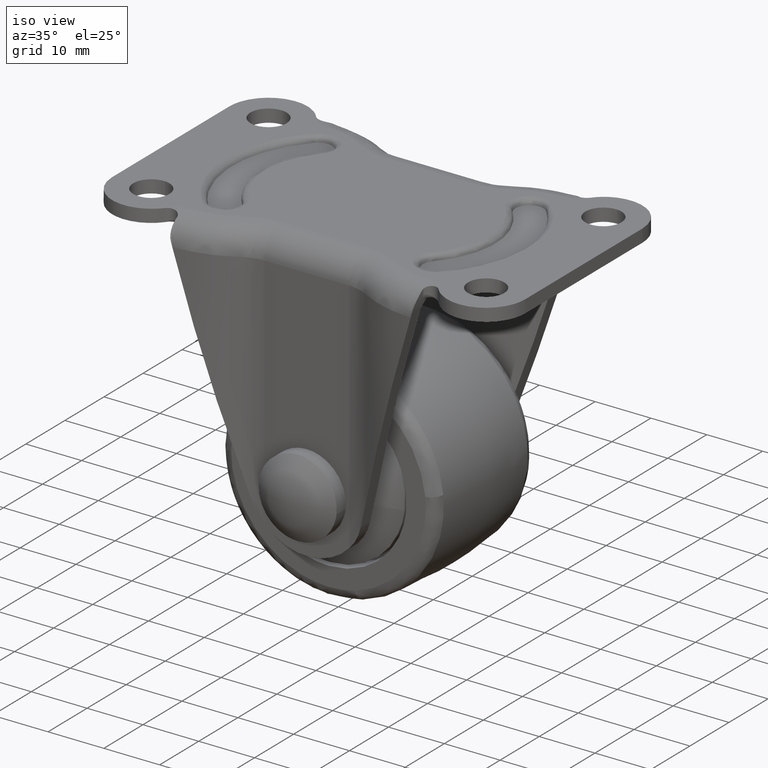
[diagram: clean part render]
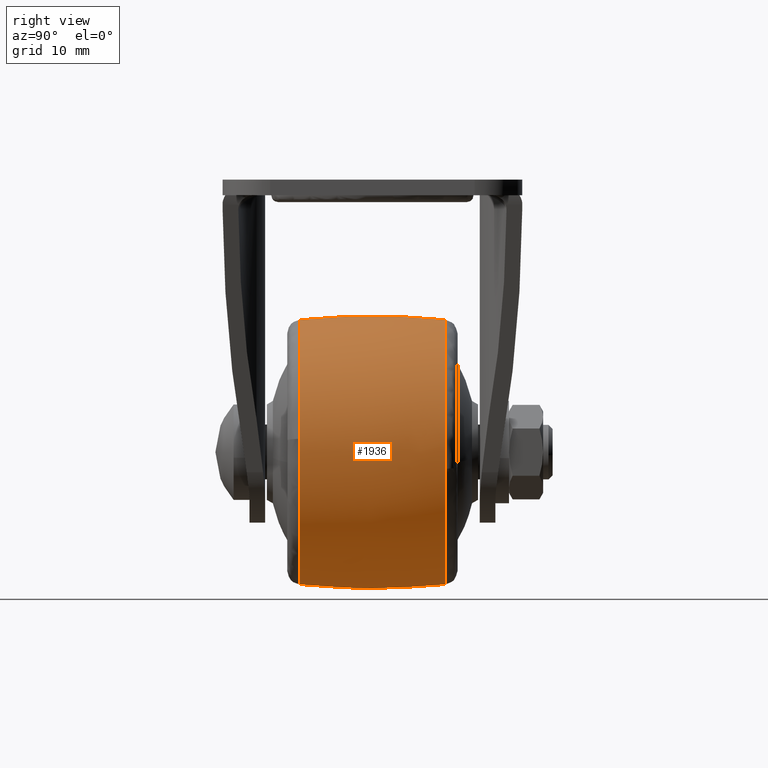
[diagram: tour spotlight — one face highlighted and labeled with its STEP entity id]
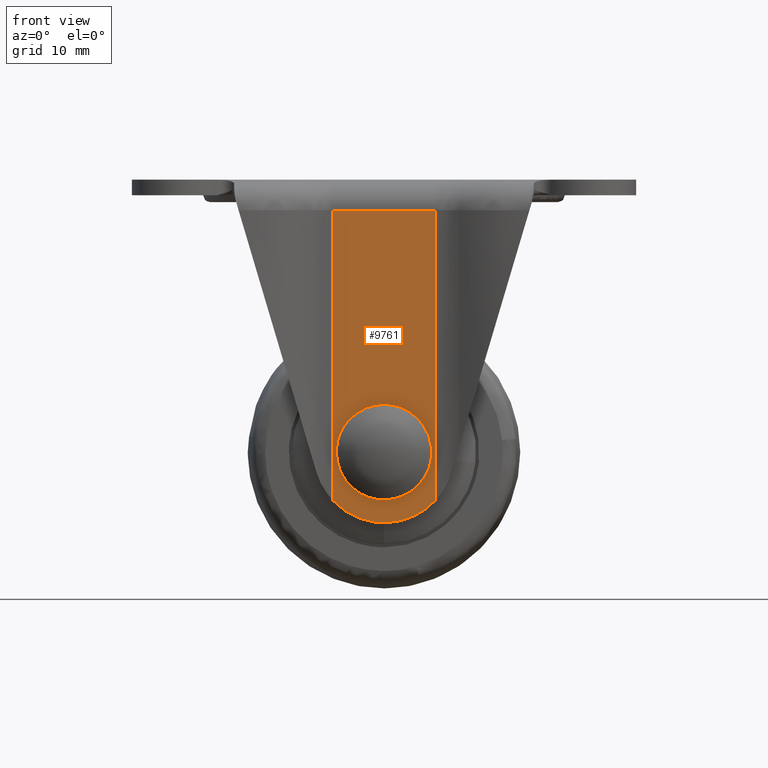
[diagram: tour spotlight — one face highlighted and labeled with its STEP entity id]
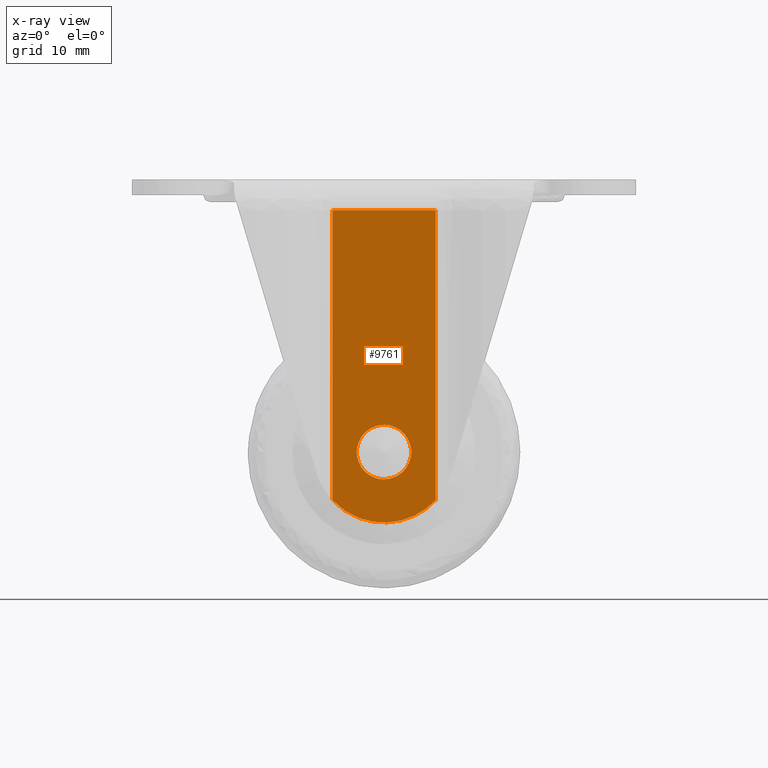
[diagram: x-ray of the same camera — body ghosted, this tour face saturated]
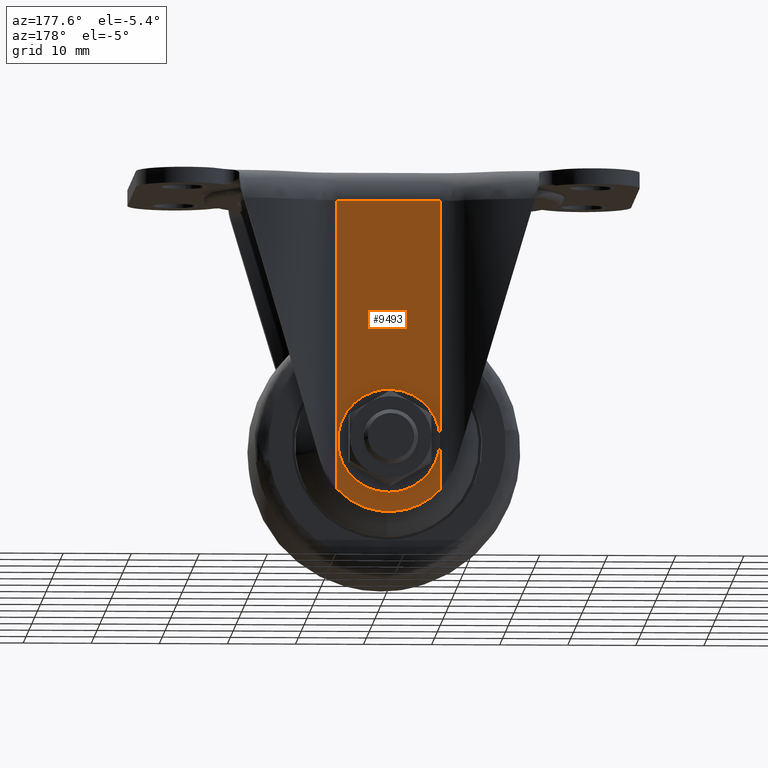
[diagram: tour spotlight — one face highlighted and labeled with its STEP entity id]
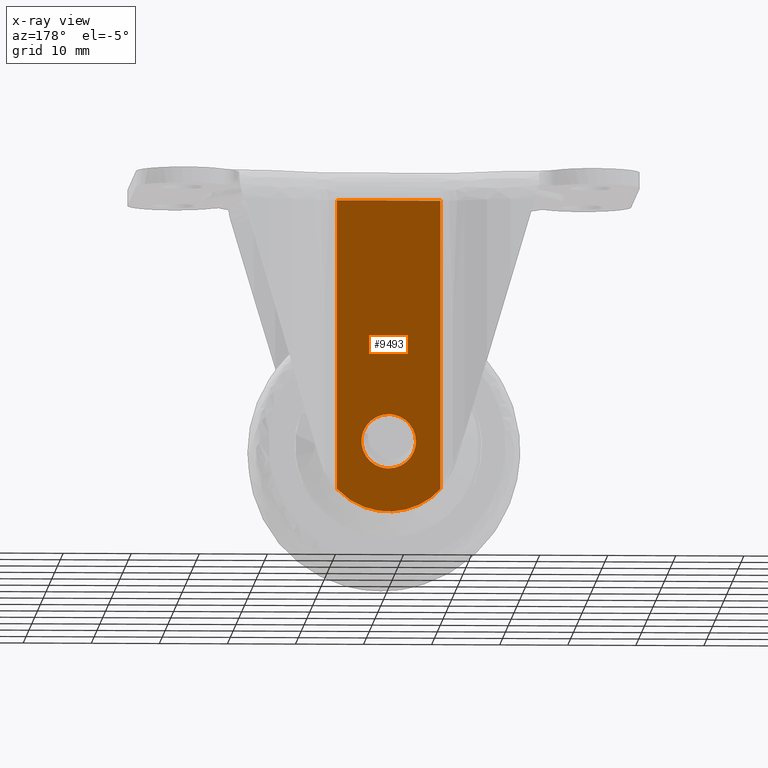
[diagram: x-ray of the same camera — body ghosted, this tour face saturated]
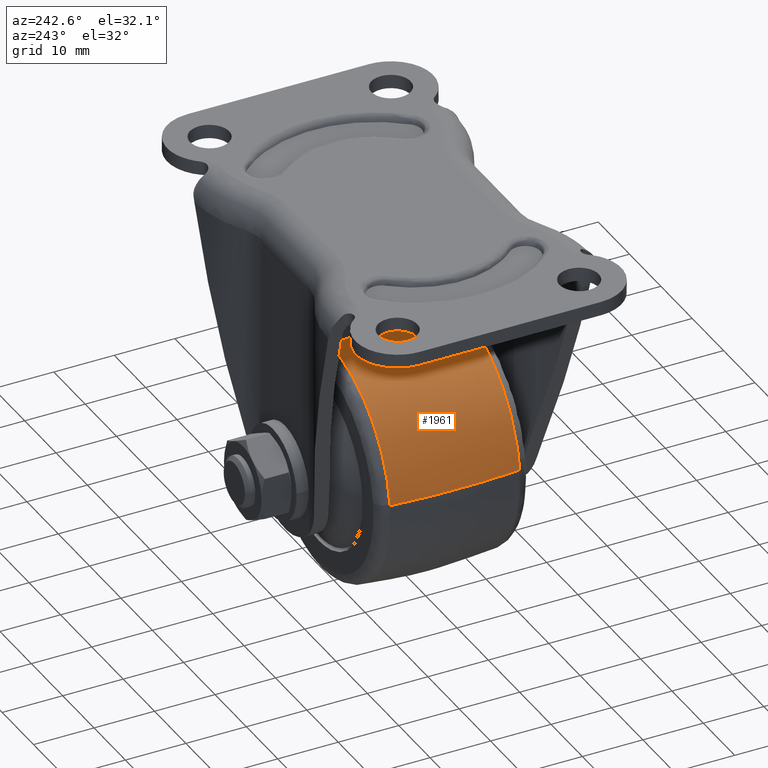
[diagram: tour spotlight — one face highlighted and labeled with its STEP entity id]
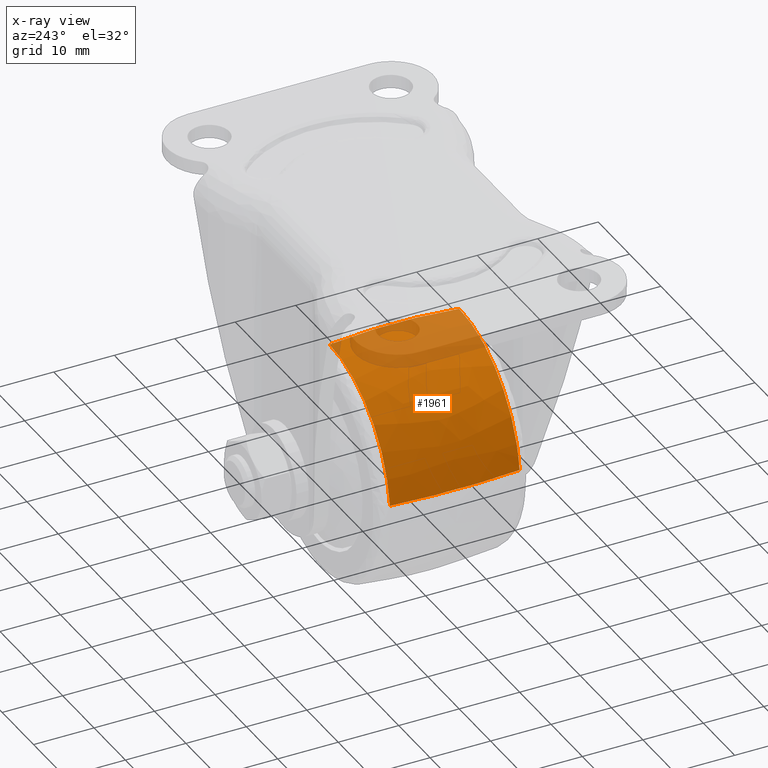
[diagram: x-ray of the same camera — body ghosted, this tour face saturated]
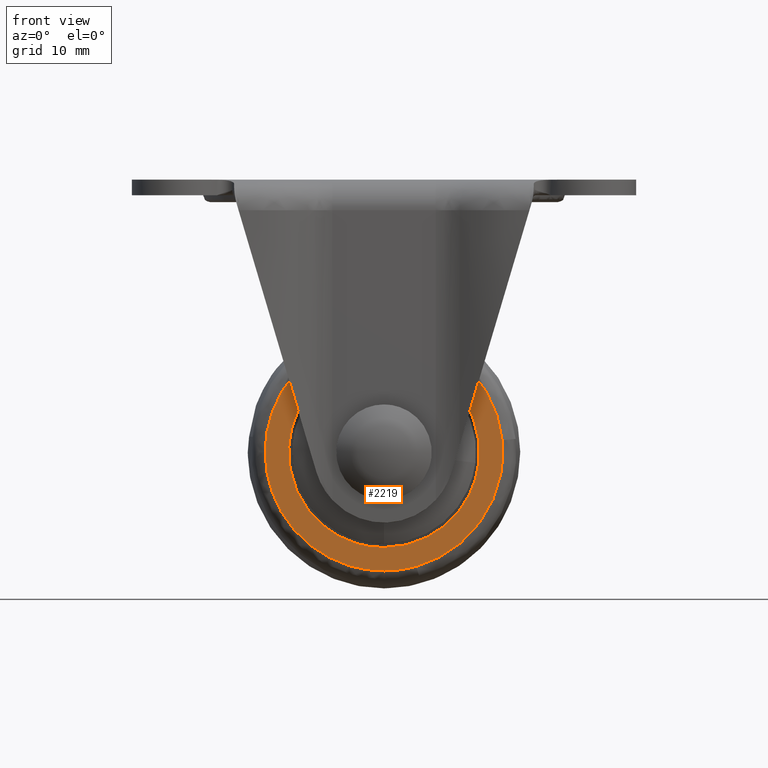
[diagram: tour spotlight — one face highlighted and labeled with its STEP entity id]
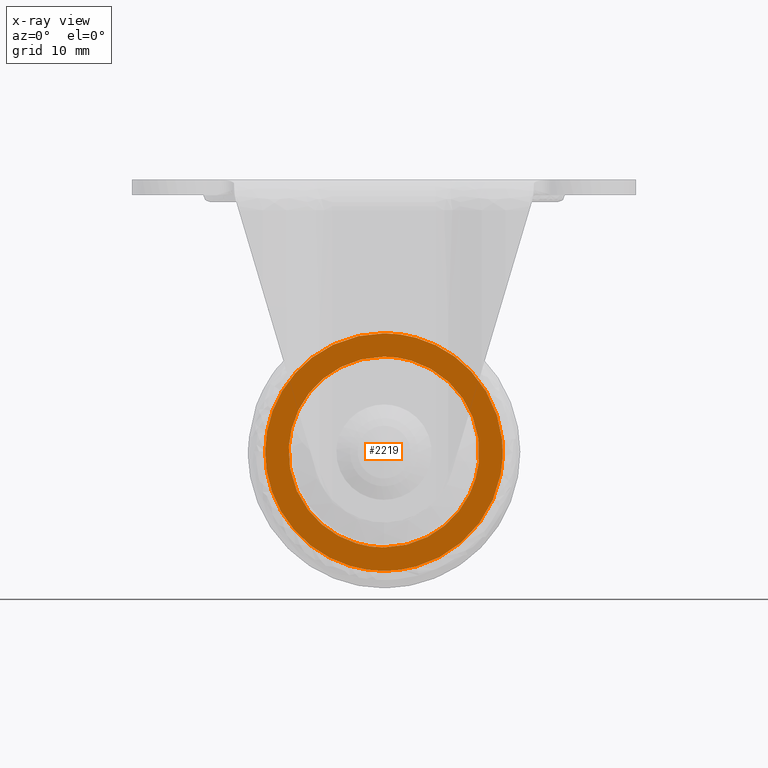
[diagram: x-ray of the same camera — body ghosted, this tour face saturated]
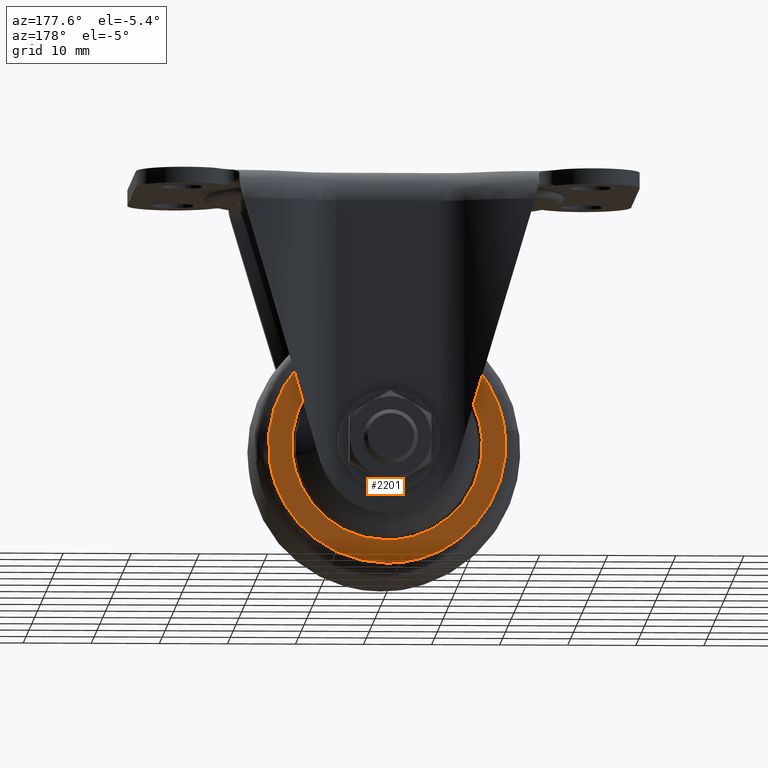
[diagram: tour spotlight — one face highlighted and labeled with its STEP entity id]
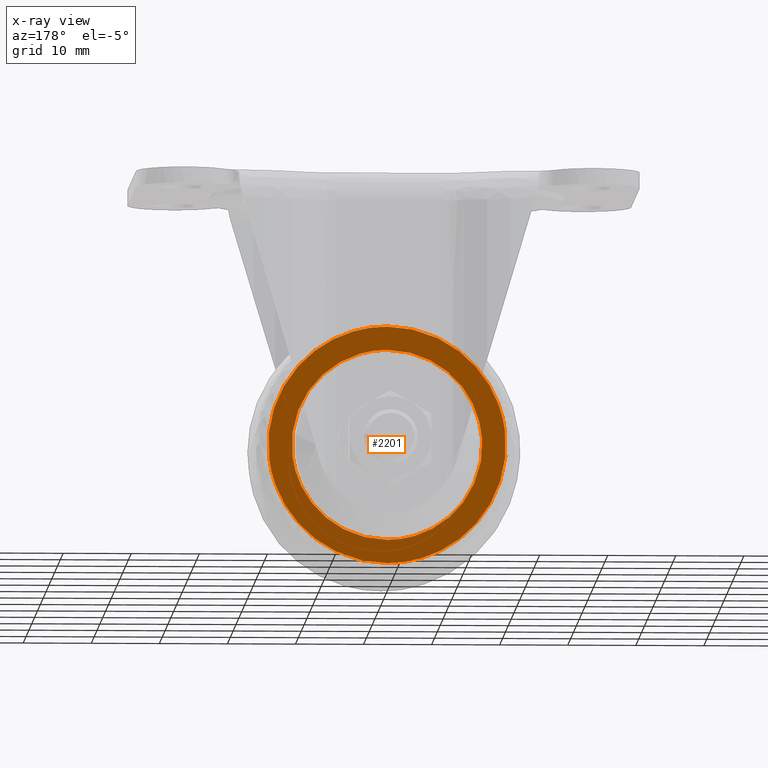
[diagram: x-ray of the same camera — body ghosted, this tour face saturated]
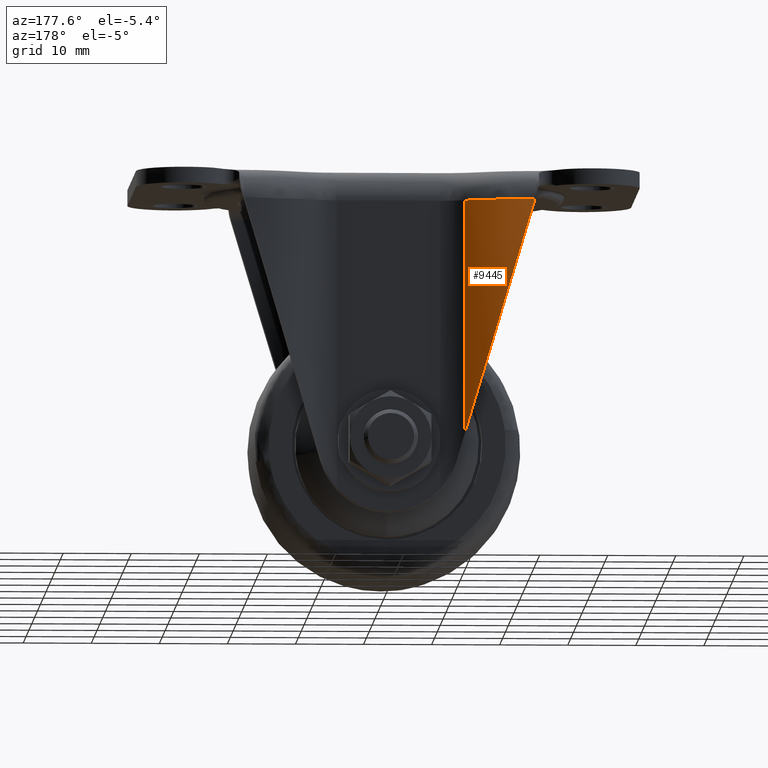
[diagram: tour spotlight — one face highlighted and labeled with its STEP entity id]
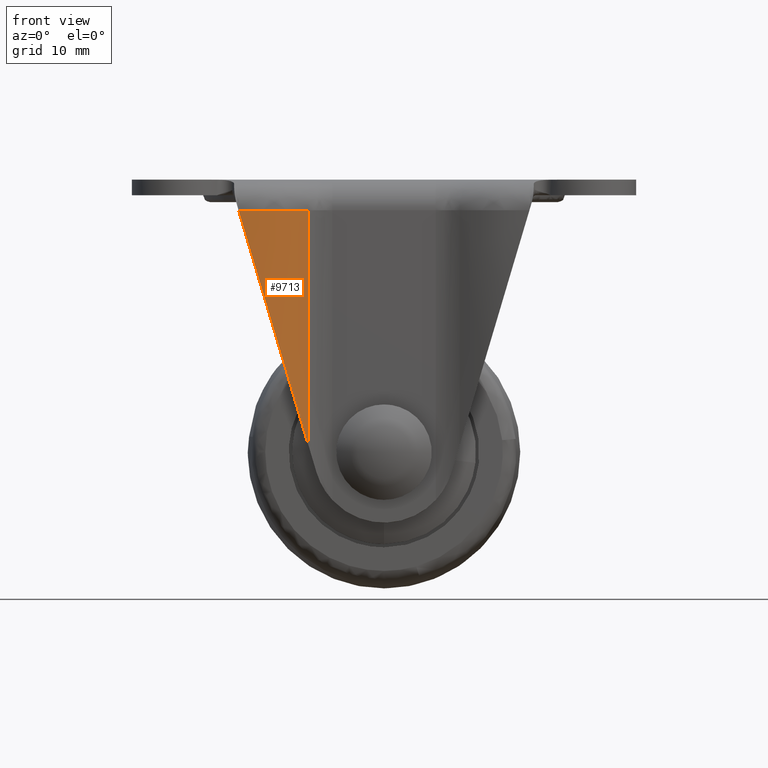
[diagram: tour spotlight — one face highlighted and labeled with its STEP entity id]
A machine part: a face-by-face anatomy tour. The part has 183 B-rep faces; the first image is the clean iso view, then the 8 largest visible faces are spotlighted one at a time (largest first), each with its STEP entity span.

Face 1 — right view, entity #1936. In plain terms, the highlighted face is a freeform B-spline surface patch.
Definition (entity closure, byte-faithful):
#1486=CARTESIAN_POINT('',(0.0,10.714286299961399,-20.575636441149630));
#1487=VERTEX_POINT('',#1486);
#1501=CARTESIAN_POINT('',(19.271196713010909,10.714285714422591,-42.434518302696873));
#1502=VERTEX_POINT('',#1501);
#1503=CARTESIAN_POINT('',(19.271196713010905,10.714285714422589,-42.434518302696880));
#1504=CARTESIAN_POINT('',(19.424363621964595,10.714285714285703,-41.222077373919213));
#1505=CARTESIAN_POINT('',(19.424363621964599,10.714285714285699,-40.0));
#1506=CARTESIAN_POINT('',(19.424363621964606,10.714285714285701,-20.575636378035405));
#1507=CARTESIAN_POINT('',(0.0,10.714286299961399,-20.575636441149630));
#1515=(BOUNDED_CURVE()B_SPLINE_CURVE(2,(#1503,#1504,#1505,#1506,#1507),.UNSPECIFIED.,.F.,.U.)B_SPLINE_CURVE_WITH_KNOTS((3,2,3),(0.228321256481037,0.250000000000000,0.500000000000000),.UNSPECIFIED.)CURVE()GEOMETRIC_REPRESENTATION_ITEM()RATIONAL_B_SPLINE_CURVE((0.953608357590948,0.974601772123599,1.0,0.707106781186548,1.0))REPRESENTATION_ITEM(''));
#1516=EDGE_CURVE('',#1502,#1487,#1515,.T.);
#1573=CARTESIAN_POINT('',(0.0,10.714285714285699,-59.424363621964602));
#1574=VERTEX_POINT('',#1573);
#1575=CARTESIAN_POINT('',(0.0,10.714285714285699,-59.424363621964602));
#1576=CARTESIAN_POINT('',(17.124880113895124,10.714285714285701,-59.424363621964616));
#1577=CARTESIAN_POINT('',(19.271196713010912,10.714285714422587,-42.434518302696873));
#1585=(BOUNDED_CURVE()B_SPLINE_CURVE(2,(#1575,#1576,#1577),.UNSPECIFIED.,.F.,.U.)B_SPLINE_CURVE_WITH_KNOTS((3,3),(0.0,0.228321256481038),.UNSPECIFIED.)CURVE()GEOMETRIC_REPRESENTATION_ITEM()RATIONAL_B_SPLINE_CURVE((1.0,0.732505009062948,0.953608357590948))REPRESENTATION_ITEM(''));
#1586=EDGE_CURVE('',#1574,#1502,#1585,.T.);
#1588=CARTESIAN_POINT('',(-19.294447095017929,10.714288828713890,-37.757189179322722));
#1589=VERTEX_POINT('',#1588);
#1590=CARTESIAN_POINT('',(-19.294447095017933,10.714288828713890,-37.757189179322722));
#1591=CARTESIAN_POINT('',(-19.424363297184993,10.714288748389205,-38.874831870471347));
#1592=CARTESIAN_POINT('',(-19.424363306840551,10.714288658186630,-40.000000036630418));
#1593=CARTESIAN_POINT('',(-19.424363473529457,10.714287100972530,-59.424363639218889));
#1594=CARTESIAN_POINT('',(0.0,10.714285714285699,-59.424363621964602));
#1602=(BOUNDED_CURVE()B_SPLINE_CURVE(2,(#1590,#1591,#1592,#1593,#1594),.UNSPECIFIED.,.F.,.U.)B_SPLINE_CURVE_WITH_KNOTS((3,2,3),(0.730000072909764,0.750000000000000,1.0),.UNSPECIFIED.)CURVE()GEOMETRIC_REPRESENTATION_ITEM()RATIONAL_B_SPLINE_CURVE((0.956886261694801,0.976568627914026,1.0,0.707106781186548,1.0))REPRESENTATION_ITEM(''));
#1603=EDGE_CURVE('',#1589,#1574,#1602,.T.);
#1654=CARTESIAN_POINT('',(5.292705178533552,-10.714285764673340,-58.689386667551439));
#1655=VERTEX_POINT('',#1654);
#1656=CARTESIAN_POINT('',(19.326290253476589,-10.714287185128100,-38.050537565722628));
#1657=VERTEX_POINT('',#1656);
#1658=CARTESIAN_POINT('',(5.292705178533552,-10.714285764673336,-58.689386667551439));
#1659=CARTESIAN_POINT('',(19.424363621964599,-10.714286041884613,-54.687398666737813));
#1660=CARTESIAN_POINT('',(19.424363621964599,-10.714287057635500,-40.000000144763717));
#1661=CARTESIAN_POINT('',(19.424363621964602,-10.714287125216561,-39.022801922672535));
#1662=CARTESIAN_POINT('',(19.326290253476596,-10.714287185128095,-38.050537565722628));
#1670=(BOUNDED_CURVE()B_SPLINE_CURVE(2,(#1658,#1659,#1660,#1661,#1662),.UNSPECIFIED.,.F.,.U.)B_SPLINE_CURVE_WITH_KNOTS((3,2,3),(0.046426116469101,0.250000000000000,0.267423442469716),.UNSPECIFIED.)CURVE()GEOMETRIC_REPRESENTATION_ITEM()RATIONAL_B_SPLINE_CURVE((0.911418360645925,0.761498359945120,1.0,0.979587167408936,0.962019629332226))REPRESENTATION_ITEM(''));
#1671=EDGE_CURVE('',#1655,#1657,#1670,.T.);
#1756=CARTESIAN_POINT('',(0.0,-10.714285714285660,-59.424363621964602));
#1757=VERTEX_POINT('',#1756);
#1758=CARTESIAN_POINT('',(0.0,-10.714285714285660,-59.424363621964602));
#1759=CARTESIAN_POINT('',(2.697384255819263,-10.714285714285658,-59.424363621964616));
#1760=CARTESIAN_POINT('',(5.292705178533552,-10.714285764673336,-58.689386667551439));
#1768=(BOUNDED_CURVE()B_SPLINE_CURVE(2,(#1758,#1759,#1760),.UNSPECIFIED.,.F.,.U.)B_SPLINE_CURVE_WITH_KNOTS((3,3),(0.0,0.046426116469101),.UNSPECIFIED.)CURVE()GEOMETRIC_REPRESENTATION_ITEM()RATIONAL_B_SPLINE_CURVE((1.0,0.945608421241427,0.911418360645925))REPRESENTATION_ITEM(''));
#1769=EDGE_CURVE('',#1757,#1655,#1768,.T.);
#1818=CARTESIAN_POINT('',(0.0,-10.714288400985341,-20.575636667562829));
#1819=VERTEX_POINT('',#1818);
#1820=CARTESIAN_POINT('',(19.326290253476589,-10.714287185128097,-38.050537565722628));
#1821=CARTESIAN_POINT('',(17.563579249041304,-10.714288400985343,-20.575636667562829));
#1822=CARTESIAN_POINT('',(0.0,-10.714288400985341,-20.575636667562829));
#1830=(BOUNDED_CURVE()B_SPLINE_CURVE(2,(#1820,#1821,#1822),.UNSPECIFIED.,.F.,.U.)B_SPLINE_CURVE_WITH_KNOTS((3,3),(0.267423442469716,0.500000000000000),.UNSPECIFIED.)CURVE()GEOMETRIC_REPRESENTATION_ITEM()RATIONAL_B_SPLINE_CURVE((0.962019629332226,0.727519613777612,1.0))REPRESENTATION_ITEM(''));
#1831=EDGE_CURVE('',#1657,#1819,#1830,.T.);
#1833=CARTESIAN_POINT('',(-19.294446533939709,-10.714293691927089,-37.757188891355263));
#1834=VERTEX_POINT('',#1833);
#1848=CARTESIAN_POINT('',(-19.294446533939716,-10.714293691927086,-37.757188891355263));
#1849=CARTESIAN_POINT('',(-19.424362790040561,-10.714293486174514,-38.874831753421049));
#1850=CARTESIAN_POINT('',(-19.424362814773311,-10.714293255119591,-40.000000093828952));
#1851=CARTESIAN_POINT('',(-19.424363241747489,-10.714289266298879,-59.424363666161526));
#1852=CARTESIAN_POINT('',(0.0,-10.714285714285660,-59.424363621964602));
#1860=(BOUNDED_CURVE()B_SPLINE_CURVE(2,(#1848,#1849,#1850,#1851,#1852),.UNSPECIFIED.,.F.,.U.)B_SPLINE_CURVE_WITH_KNOTS((3,2,3),(0.730000069854633,0.750000000000000,1.0),.UNSPECIFIED.)CURVE()GEOMETRIC_REPRESENTATION_ITEM()RATIONAL_B_SPLINE_CURVE((0.956886255681557,0.976568624334717,1.0,0.707106781186548,1.0))REPRESENTATION_ITEM(''));
#1861=EDGE_CURVE('',#1834,#1757,#1860,.T.);
#1866=CARTESIAN_POINT('',(-19.174913711203846,-11.777539182089125,-37.771075993191246));
#1867=CARTESIAN_POINT('',(-20.562396841686844,-0.000001993783844,-37.609792635928031));
#1868=CARTESIAN_POINT('',(-19.174914174453328,11.777535249833139,-37.771075939342360));
#1869=CARTESIAN_POINT('',(-19.304025954713218,-11.777539182089129,-38.881798530518466));
#1870=CARTESIAN_POINT('',(-20.700851555389619,-0.000001993783845,-38.800886266778775));
#1871=CARTESIAN_POINT('',(-19.304026421081939,11.777535249833148,-38.881798503503695));
#1872=CARTESIAN_POINT('',(-19.304025954713222,-11.777539182089138,-40.0));
#1873=CARTESIAN_POINT('',(-20.700851555389622,-0.000001993783847,-39.999999999999993));
#1874=CARTESIAN_POINT('',(-19.304026421081936,11.777535249833148,-39.999999999999993));
#1875=CARTESIAN_POINT('',(-19.304025954713236,-11.777539182089129,-59.304025954713218));
#1876=CARTESIAN_POINT('',(-20.700851555389637,-0.000001993783845,-60.700851555389626));
#1877=CARTESIAN_POINT('',(-19.304026421081943,11.777535249833143,-59.304026421081936));
#1878=CARTESIAN_POINT('',(0.0,-11.777539182089138,-59.304025954713225));
#1879=CARTESIAN_POINT('',(0.0,-0.000001993783847,-60.700851555389619));
#1880=CARTESIAN_POINT('',(0.0,11.777535249833148,-59.304026421081929));
#1881=CARTESIAN_POINT('',(19.304025954713218,-11.777539182089129,-59.304025954713232));
#1882=CARTESIAN_POINT('',(20.700851555389619,-0.000001993783845,-60.700851555389626));
#1883=CARTESIAN_POINT('',(19.304026421081943,11.777535249833143,-59.304026421081936));
#1884=CARTESIAN_POINT('',(19.304025954713222,-11.777539182089138,-40.0));
#1885=CARTESIAN_POINT('',(20.700851555389622,-0.000001993783847,-39.999999999999993));
#1886=CARTESIAN_POINT('',(19.304026421081936,11.777535249833148,-39.999999999999993));
#1887=CARTESIAN_POINT('',(19.304025954713236,-11.777539182089129,-20.695974045286796));
#1888=CARTESIAN_POINT('',(20.700851555389637,-0.000001993783845,-19.299148444610385));
#1889=CARTESIAN_POINT('',(19.304026421081943,11.777535249833143,-20.695973578918068));
#1890=CARTESIAN_POINT('',(0.0,-11.777539182089138,-20.695974045286782));
#1891=CARTESIAN_POINT('',(0.0,-0.000001993783847,-19.299148444610385));
#1892=CARTESIAN_POINT('',(0.0,11.777535249833148,-20.695973578918061));
#1900=(BOUNDED_SURFACE()B_SPLINE_SURFACE(2,2,((#1866,#1869,#1872,#1875,#1878,#1881,#1884,#1887,#1890),(#1867,#1870,#1873,#1876,#1879,#1882,#1885,#1888,#1891),(#1868,#1871,#1874,#1877,#1880,#1883,#1886,#1889,#1892)),.UNSPECIFIED.,.F.,.F.,.U.)B_SPLINE_SURFACE_WITH_KNOTS((3,3),(3,2,2,2,3),(0.0,23.637329242626830),(0.0,2.650966246153039,35.788051236000662,68.925136225848263,102.062221215695900),.UNSPECIFIED.)GEOMETRIC_REPRESENTATION_ITEM()RATIONAL_B_SPLINE_SURFACE(((0.864204834435419,0.881980871620232,0.903142819808870,0.638618412266793,0.903142819808870,0.638618412266793,0.903142819808870,0.638618412266793,0.903142819808870),(0.858190194100748,0.875842514701272,0.896857181247801,0.634173794616172,0.896857181247801,0.634173794616172,0.896857181247801,0.634173794616172,0.896857181247801),(0.864204832413191,0.881980869556408,0.903142817695529,0.638618410772434,0.903142817695529,0.638618410772434,0.903142817695529,0.638618410772434,0.903142817695529)))REPRESENTATION_ITEM('')SURFACE());
#1901=ORIENTED_EDGE('',*,*,#1603,.T.);
#1902=ORIENTED_EDGE('',*,*,#1586,.T.);
#1903=ORIENTED_EDGE('',*,*,#1516,.T.);
#1904=CARTESIAN_POINT('',(0.0,-10.714288400985343,-20.575636667562829));
#1905=CARTESIAN_POINT('',(0.0,-0.000000766472903,-19.421030654714041));
#1906=CARTESIAN_POINT('',(0.0,10.714286299961401,-20.575636441149637));
#1914=(BOUNDED_CURVE()B_SPLINE_CURVE(2,(#1904,#1905,#1906),.UNSPECIFIED.,.F.,.U.)B_SPLINE_CURVE_WITH_KNOTS((3,3),(0.419410886749644,0.580589101786449),.UNSPECIFIED.)CURVE()GEOMETRIC_REPRESENTATION_ITEM()RATIONAL_B_SPLINE_CURVE((0.902597842069791,0.897402158299755,0.902597841330699))REPRESENTATION_ITEM(''));
#1915=EDGE_CURVE('',#1819,#1487,#1914,.T.);
#1916=ORIENTED_EDGE('',*,*,#1915,.F.);
#1917=ORIENTED_EDGE('',*,*,#1831,.F.);
#1918=ORIENTED_EDGE('',*,*,#1671,.F.);
#1919=ORIENTED_EDGE('',*,*,#1769,.F.);
#1920=ORIENTED_EDGE('',*,*,#1861,.F.);
#1921=CARTESIAN_POINT('',(-19.294446533939709,-10.714293691927091,-37.757188891355248));
#1922=CARTESIAN_POINT('',(-20.441331102992734,-0.000002459844640,-37.623873260782517));
#1923=CARTESIAN_POINT('',(-19.294447095017933,10.714288828713892,-37.757189179322715));
#1931=(BOUNDED_CURVE()B_SPLINE_CURVE(2,(#1921,#1922,#1923),.UNSPECIFIED.,.F.,.U.)B_SPLINE_CURVE_WITH_KNOTS((3,3),(0.419410846722625,0.580589116486210),.UNSPECIFIED.)CURVE()GEOMETRIC_REPRESENTATION_ITEM()RATIONAL_B_SPLINE_CURVE((0.863683347854764,0.858711666023279,0.863683345585054))REPRESENTATION_ITEM(''));
#1932=EDGE_CURVE('',#1834,#1589,#1931,.T.);
#1933=ORIENTED_EDGE('',*,*,#1932,.T.);
#1934=EDGE_LOOP('',(#1901,#1902,#1903,#1916,#1917,#1918,#1919,#1920,#1933));
#1935=FACE_OUTER_BOUND('',#1934,.T.);
#1936=ADVANCED_FACE('',(#1935),#1900,.T.);

Face 2 — front view, entity #9761. An x-ray twin of the same camera follows (body ghosted, this face saturated) — the face is partly hidden behind the body. In plain terms, the highlighted face is a freeform B-spline surface patch.
Definition (entity closure, byte-faithful):
#3077=CARTESIAN_POINT('',(-3.969064855286954,-18.050000000000001,-40.496512008442451));
#3078=VERTEX_POINT('',#3077);
#3079=CARTESIAN_POINT('',(0.0,-18.050000000000001,-44.000000000000199));
#3080=VERTEX_POINT('',#3079);
#3081=CARTESIAN_POINT('',(-3.969064855286954,-18.050000000000004,-40.496512008442451));
#3082=CARTESIAN_POINT('',(-3.530794400380356,-18.050000000000008,-44.000000000000199));
#3083=CARTESIAN_POINT('',(0.0,-18.050000000000001,-44.000000000000199));
#3091=(BOUNDED_CURVE()B_SPLINE_CURVE(2,(#3081,#3082,#3083),.UNSPECIFIED.,.F.,.U.)B_SPLINE_CURVE_WITH_KNOTS((3,3),(0.771473928981163,1.0),.UNSPECIFIED.)CURVE()GEOMETRIC_REPRESENTATION_ITEM()RATIONAL_B_SPLINE_CURVE((0.954005430254416,0.732265053906005,1.0))REPRESENTATION_ITEM(''));
#3092=EDGE_CURVE('',#3078,#3080,#3091,.T.);
#3094=CARTESIAN_POINT('',(3.999847692254718,-18.050000000000001,-39.965093857758113));
#3095=VERTEX_POINT('',#3094);
#3096=CARTESIAN_POINT('',(0.0,-18.050000000000001,-44.000000000000199));
#3097=CARTESIAN_POINT('',(4.000000000000201,-18.049999999999997,-44.000000000000199));
#3098=CARTESIAN_POINT('',(4.000000000000201,-18.050000000000001,-40.0));
#3099=CARTESIAN_POINT('',(4.000000000000201,-18.050000000000001,-39.982546596468787));
#3100=CARTESIAN_POINT('',(3.999847692254718,-18.050000000000001,-39.965093857758113));
#3108=(BOUNDED_CURVE()B_SPLINE_CURVE(2,(#3096,#3097,#3098,#3099,#3100),.UNSPECIFIED.,.F.,.U.)B_SPLINE_CURVE_WITH_KNOTS((3,2,3),(0.0,0.250000000000000,0.251539894356865),.UNSPECIFIED.)CURVE()GEOMETRIC_REPRESENTATION_ITEM()RATIONAL_B_SPLINE_CURVE((1.0,0.707106781186547,1.0,0.998195901540741,0.996414028049774))REPRESENTATION_ITEM(''));
#3109=EDGE_CURVE('',#3080,#3095,#3108,.T.);
#3180=CARTESIAN_POINT('',(0.0,-18.050000000000001,-35.999999999999801));
#3181=VERTEX_POINT('',#3180);
#3182=CARTESIAN_POINT('',(0.0,-18.050000000000001,-35.999999999999801));
#3183=CARTESIAN_POINT('',(-4.000000000000201,-18.049999999999997,-35.999999999999801));
#3184=CARTESIAN_POINT('',(-4.000000000000201,-18.050000000000001,-40.0));
#3185=CARTESIAN_POINT('',(-4.000000000000201,-18.050000000000004,-40.249219710258551));
#3186=CARTESIAN_POINT('',(-3.969064855286954,-18.050000000000004,-40.496512008442451));
#3194=(BOUNDED_CURVE()B_SPLINE_CURVE(2,(#3182,#3183,#3184,#3185,#3186),.UNSPECIFIED.,.F.,.U.)B_SPLINE_CURVE_WITH_KNOTS((3,2,3),(0.500000000000000,0.750000000000000,0.771473928981163),.UNSPECIFIED.)CURVE()GEOMETRIC_REPRESENTATION_ITEM()RATIONAL_B_SPLINE_CURVE((1.0,0.707106781186547,1.0,0.974841727280543,0.954005430254416))REPRESENTATION_ITEM(''));
#3195=EDGE_CURVE('',#3181,#3078,#3194,.T.);
#3229=CARTESIAN_POINT('',(3.999847692254718,-18.049999999999994,-39.965093857758106));
#3230=CARTESIAN_POINT('',(3.965244841887587,-18.050000000000008,-35.999999999999808));
#3231=CARTESIAN_POINT('',(0.0,-18.050000000000001,-35.999999999999801));
#3239=(BOUNDED_CURVE()B_SPLINE_CURVE(2,(#3229,#3230,#3231),.UNSPECIFIED.,.F.,.U.)B_SPLINE_CURVE_WITH_KNOTS((3,3),(0.251539894356865,0.500000000000000),.UNSPECIFIED.)CURVE()GEOMETRIC_REPRESENTATION_ITEM()RATIONAL_B_SPLINE_CURVE((0.996414028049774,0.708910879645807,1.0))REPRESENTATION_ITEM(''));
#3240=EDGE_CURVE('',#3095,#3181,#3239,.T.);
#6472=CARTESIAN_POINT('',(7.601736000000100,-18.050000000000001,-4.499999999999949));
#6473=VERTEX_POINT('',#6472);
#6533=CARTESIAN_POINT('',(-7.601737942847009,-18.050000000000001,-4.499999999999949));
#6534=VERTEX_POINT('',#6533);
#6548=CARTESIAN_POINT('',(7.601736000000100,-18.050000000000001,-4.499999999999949));
#6549=CARTESIAN_POINT('',(-7.601737942847009,-18.050000000000001,-4.499999999999949));
#6550=QUASI_UNIFORM_CURVE('',1,(#6548,#6549),.UNSPECIFIED.,.F.,.U.);
#6551=EDGE_CURVE('',#6473,#6534,#6550,.T.);
#8603=CARTESIAN_POINT('',(7.601736000000100,-18.050000000000001,-47.023965975910002));
#8604=VERTEX_POINT('',#8603);
#8618=CARTESIAN_POINT('',(-7.601737942846990,-18.050000000000001,-47.023963873250104));
#8619=VERTEX_POINT('',#8618);
#8620=CARTESIAN_POINT('',(-7.601737942847001,-18.050000000000001,-47.023963873250111));
#8621=CARTESIAN_POINT('',(-4.528499917874507,-18.050000000000004,-50.349998536884911));
#8622=CARTESIAN_POINT('',(-0.000001431418239,-18.050000000000001,-50.349999163182048));
#8623=CARTESIAN_POINT('',(4.528497055038036,-18.050000000000004,-50.349999789479192));
#8624=CARTESIAN_POINT('',(7.601736000000115,-18.050000000000001,-47.023965975910023));
#8632=(BOUNDED_CURVE()B_SPLINE_CURVE(2,(#8620,#8621,#8622,#8623,#8624),.UNSPECIFIED.,.F.,.U.)B_SPLINE_CURVE_WITH_KNOTS((3,2,3),(0.0,0.500000000000000,1.0),.UNSPECIFIED.)CURVE()GEOMETRIC_REPRESENTATION_ITEM()RATIONAL_B_SPLINE_CURVE((1.0,0.916145194529142,1.0,0.916145194529142,1.0))REPRESENTATION_ITEM(''));
#8633=EDGE_CURVE('',#8619,#8604,#8632,.T.);
#9728=CARTESIAN_POINT('',(-7.601737942846990,-18.050000000000001,-47.023963873250104));
#9729=CARTESIAN_POINT('',(-7.601737942847009,-18.050000000000001,-4.499999999999949));
#9730=QUASI_UNIFORM_CURVE('',1,(#9728,#9729),.UNSPECIFIED.,.F.,.U.);
#9731=EDGE_CURVE('',#8619,#6534,#9730,.T.);
#9740=CARTESIAN_POINT('',(-8.361151579544277,-18.050000000000001,-2.209792794473600));
#9741=CARTESIAN_POINT('',(-8.361151579544277,-18.050000000000001,-52.640204319053709));
#9742=CARTESIAN_POINT('',(8.361149908556667,-18.050000000000001,-2.209792794473600));
#9743=CARTESIAN_POINT('',(8.361149908556667,-18.050000000000001,-52.640204319053709));
#9744=B_SPLINE_SURFACE_WITH_KNOTS('',1,1,((#9740,#9742),(#9741,#9743)),.UNSPECIFIED.,.F.,.F.,.U.,(2,2),(2,2),(0.0,50.430411524580109),(0.0,16.722301488100950),.UNSPECIFIED.);
#9745=CARTESIAN_POINT('',(7.601736000000100,-18.050000000000001,-47.023965975910002));
#9746=CARTESIAN_POINT('',(7.601736000000100,-18.050000000000001,-4.499999999999949));
#9747=QUASI_UNIFORM_CURVE('',1,(#9745,#9746),.UNSPECIFIED.,.F.,.U.);
#9748=EDGE_CURVE('',#8604,#6473,#9747,.T.);
#9749=ORIENTED_EDGE('',*,*,#9748,.T.);
#9750=ORIENTED_EDGE('',*,*,#6551,.T.);
#9751=ORIENTED_EDGE('',*,*,#9731,.F.);
#9752=ORIENTED_EDGE('',*,*,#8633,.T.);
#9753=EDGE_LOOP('',(#9749,#9750,#9751,#9752));
#9754=FACE_OUTER_BOUND('',#9753,.T.);
#9755=ORIENTED_EDGE('',*,*,#3109,.F.);
#9756=ORIENTED_EDGE('',*,*,#3092,.F.);
#9757=ORIENTED_EDGE('',*,*,#3195,.F.);
#9758=ORIENTED_EDGE('',*,*,#3240,.F.);
#9759=EDGE_LOOP('',(#9755,#9756,#9757,#9758));
#9760=FACE_BOUND('',#9759,.T.);
#9761=ADVANCED_FACE('',(#9754,#9760),#9744,.T.);

Face 3 — auxiliary view, entity #9493. An x-ray twin of the same camera follows (body ghosted, this face saturated) — the face is partly hidden behind the body. In plain terms, the highlighted face is a freeform B-spline surface patch.
Definition (entity closure, byte-faithful):
#3263=CARTESIAN_POINT('',(0.0,18.050000000000001,-35.999999999999801));
#3264=VERTEX_POINT('',#3263);
#3265=CARTESIAN_POINT('',(3.969064855282674,18.050000000000001,-39.503487991523343));
#3266=VERTEX_POINT('',#3265);
#3267=CARTESIAN_POINT('',(0.0,18.050000000000001,-35.999999999999801));
#3268=CARTESIAN_POINT('',(3.530794400319015,18.049999999999994,-35.999999999999801));
#3269=CARTESIAN_POINT('',(3.969064855282674,18.050000000000001,-39.503487991523350));
#3277=(BOUNDED_CURVE()B_SPLINE_CURVE(2,(#3267,#3268,#3269),.UNSPECIFIED.,.F.,.U.)B_SPLINE_CURVE_WITH_KNOTS((3,3),(0.0,0.228526071015930),.UNSPECIFIED.)CURVE()GEOMETRIC_REPRESENTATION_ITEM()RATIONAL_B_SPLINE_CURVE((1.0,0.732265053909411,0.954005430248774))REPRESENTATION_ITEM(''));
#3278=EDGE_CURVE('',#3264,#3266,#3277,.T.);
#3319=CARTESIAN_POINT('',(-3.999847692254924,18.050000000000001,-40.034906142218219));
#3320=VERTEX_POINT('',#3319);
#3326=CARTESIAN_POINT('',(-3.999847692254925,18.050000000000004,-40.034906142218226));
#3327=CARTESIAN_POINT('',(-4.000000000000201,18.049999999999997,-40.017453403507545));
#3328=CARTESIAN_POINT('',(-4.000000000000201,18.050000000000001,-40.0));
#3329=CARTESIAN_POINT('',(-4.000000000000201,18.049999999999997,-35.999999999999801));
#3330=CARTESIAN_POINT('',(0.0,18.050000000000001,-35.999999999999801));
#3338=(BOUNDED_CURVE()B_SPLINE_CURVE(2,(#3326,#3327,#3328,#3329,#3330),.UNSPECIFIED.,.F.,.U.)B_SPLINE_CURVE_WITH_KNOTS((3,2,3),(0.748460105645221,0.750000000000000,1.0),.UNSPECIFIED.)CURVE()GEOMETRIC_REPRESENTATION_ITEM()RATIONAL_B_SPLINE_CURVE((0.996414028054601,0.998195901543184,1.0,0.707106781186547,1.0))REPRESENTATION_ITEM(''));
#3339=EDGE_CURVE('',#3320,#3264,#3338,.T.);
#3366=CARTESIAN_POINT('',(0.0,18.050000000000001,-44.000000000000199));
#3367=VERTEX_POINT('',#3366);
#3368=CARTESIAN_POINT('',(3.969064855282674,18.050000000000001,-39.503487991523350));
#3369=CARTESIAN_POINT('',(4.000000000000202,18.050000000000001,-39.750780289706853));
#3370=CARTESIAN_POINT('',(4.000000000000201,18.050000000000001,-40.0));
#3371=CARTESIAN_POINT('',(4.000000000000201,18.049999999999997,-44.000000000000199));
#3372=CARTESIAN_POINT('',(0.0,18.050000000000001,-44.000000000000199));
#3380=(BOUNDED_CURVE()B_SPLINE_CURVE(2,(#3368,#3369,#3370,#3371,#3372),.UNSPECIFIED.,.F.,.U.)B_SPLINE_CURVE_WITH_KNOTS((3,2,3),(0.228526071015930,0.250000000000000,0.500000000000000),.UNSPECIFIED.)CURVE()GEOMETRIC_REPRESENTATION_ITEM()RATIONAL_B_SPLINE_CURVE((0.954005430248775,0.974841727277137,1.0,0.707106781186547,1.0))REPRESENTATION_ITEM(''));
#3381=EDGE_CURVE('',#3266,#3367,#3380,.T.);
#3383=CARTESIAN_POINT('',(0.0,18.050000000000001,-44.000000000000199));
#3384=CARTESIAN_POINT('',(-3.965244841934542,18.050000000000001,-44.000000000000199));
#3385=CARTESIAN_POINT('',(-3.999847692254924,18.050000000000001,-40.034906142218219));
#3393=(BOUNDED_CURVE()B_SPLINE_CURVE(2,(#3383,#3384,#3385),.UNSPECIFIED.,.F.,.U.)B_SPLINE_CURVE_WITH_KNOTS((3,3),(0.500000000000000,0.748460105645221),.UNSPECIFIED.)CURVE()GEOMETRIC_REPRESENTATION_ITEM()RATIONAL_B_SPLINE_CURVE((1.0,0.708910879643363,0.996414028054601))REPRESENTATION_ITEM(''));
#3394=EDGE_CURVE('',#3367,#3320,#3393,.T.);
#5694=CARTESIAN_POINT('',(-7.601735999999900,18.050000000000001,-4.499999999999949));
#5695=VERTEX_POINT('',#5694);
#5755=CARTESIAN_POINT('',(7.601737942846899,18.050000000000001,-4.499999999999949));
#5756=VERTEX_POINT('',#5755);
#5770=CARTESIAN_POINT('',(-7.601735999999900,18.050000000000001,-4.499999999999949));
#5771=CARTESIAN_POINT('',(7.601737942846899,18.050000000000001,-4.499999999999949));
#5772=QUASI_UNIFORM_CURVE('',1,(#5770,#5771),.UNSPECIFIED.,.F.,.U.);
#5773=EDGE_CURVE('',#5695,#5756,#5772,.T.);
#8910=CARTESIAN_POINT('',(-7.601735999999880,18.050000000000249,-47.023965975910301));
#8911=VERTEX_POINT('',#8910);
#8925=CARTESIAN_POINT('',(7.601737942846899,18.050000000000001,-47.023963873250203));
#8926=VERTEX_POINT('',#8925);
#8927=CARTESIAN_POINT('',(7.601737942846923,18.050000000000001,-47.023963873250217));
#8928=CARTESIAN_POINT('',(4.528499917874484,18.049999999999997,-50.349998536884875));
#8929=CARTESIAN_POINT('',(0.000001431418362,18.050000000000001,-50.349999163182048));
#8930=CARTESIAN_POINT('',(-4.528497055037758,18.049999999999997,-50.349999789479234));
#8931=CARTESIAN_POINT('',(-7.601735999999880,18.050000000000249,-47.023965975910301));
#8939=(BOUNDED_CURVE()B_SPLINE_CURVE(2,(#8927,#8928,#8929,#8930,#8931),.UNSPECIFIED.,.F.,.U.)B_SPLINE_CURVE_WITH_KNOTS((3,2,3),(0.0,0.500000000000000,1.0),.UNSPECIFIED.)CURVE()GEOMETRIC_REPRESENTATION_ITEM()RATIONAL_B_SPLINE_CURVE((1.0,0.916145194529147,1.0,0.916145194529147,1.0))REPRESENTATION_ITEM(''));
#8940=EDGE_CURVE('',#8926,#8911,#8939,.T.);
#9462=CARTESIAN_POINT('',(-7.601735999999880,18.050000000000249,-47.023965975910301));
#9463=CARTESIAN_POINT('',(-7.601735999999900,18.050000000000001,-4.499999999999949));
#9464=QUASI_UNIFORM_CURVE('',1,(#9462,#9463),.UNSPECIFIED.,.F.,.U.);
#9465=EDGE_CURVE('',#8911,#5695,#9464,.T.);
#9472=CARTESIAN_POINT('',(-8.361149636697151,18.050000000000001,-52.640206102109801));
#9473=CARTESIAN_POINT('',(-8.361149636697151,18.050000000000001,-2.209791421348438));
#9474=CARTESIAN_POINT('',(8.361151851403452,18.050000000000001,-52.640206102109801));
#9475=CARTESIAN_POINT('',(8.361151851403452,18.050000000000001,-2.209791421348438));
#9476=B_SPLINE_SURFACE_WITH_KNOTS('',1,1,((#9472,#9474),(#9473,#9475)),.UNSPECIFIED.,.F.,.F.,.U.,(2,2),(2,2),(0.0,50.430414680761359),(0.0,16.722301488100609),.UNSPECIFIED.);
#9477=ORIENTED_EDGE('',*,*,#9465,.T.);
#9478=ORIENTED_EDGE('',*,*,#5773,.T.);
#9479=CARTESIAN_POINT('',(7.601737942846899,18.050000000000001,-47.023963873250203));
#9480=CARTESIAN_POINT('',(7.601737942846899,18.050000000000001,-4.499999999999949));
#9481=QUASI_UNIFORM_CURVE('',1,(#9479,#9480),.UNSPECIFIED.,.F.,.U.);
#9482=EDGE_CURVE('',#8926,#5756,#9481,.T.);
#9483=ORIENTED_EDGE('',*,*,#9482,.F.);
#9484=ORIENTED_EDGE('',*,*,#8940,.T.);
#9485=EDGE_LOOP('',(#9477,#9478,#9483,#9484));
#9486=FACE_OUTER_BOUND('',#9485,.T.);
#9487=ORIENTED_EDGE('',*,*,#3394,.F.);
#9488=ORIENTED_EDGE('',*,*,#3381,.F.);
#9489=ORIENTED_EDGE('',*,*,#3278,.F.);
#9490=ORIENTED_EDGE('',*,*,#3339,.F.);
#9491=EDGE_LOOP('',(#9487,#9488,#9489,#9490));
#9492=FACE_BOUND('',#9491,.T.);
#9493=ADVANCED_FACE('',(#9486,#9492),#9476,.T.);

Face 4 — auxiliary view, entity #1961. An x-ray twin of the same camera follows (body ghosted, this face saturated) — the face is partly hidden behind the body. In plain terms, the highlighted face is a freeform B-spline surface patch.
Definition (entity closure, byte-faithful):
#1471=CARTESIAN_POINT('',(-19.271196381712350,10.714288814684050,-37.565481739167602));
#1472=VERTEX_POINT('',#1471);
#1486=CARTESIAN_POINT('',(0.0,10.714286299961399,-20.575636441149630));
#1487=VERTEX_POINT('',#1486);
#1488=CARTESIAN_POINT('',(0.0,10.714286299961399,-20.575636441149630));
#1489=CARTESIAN_POINT('',(-17.124879951524253,10.714287551738503,-20.575636429090032));
#1490=CARTESIAN_POINT('',(-19.271196381712350,10.714288814684052,-37.565481739167602));
#1498=(BOUNDED_CURVE()B_SPLINE_CURVE(2,(#1488,#1489,#1490),.UNSPECIFIED.,.F.,.U.)B_SPLINE_CURVE_WITH_KNOTS((3,3),(0.500000000000000,0.728321256506987),.UNSPECIFIED.)CURVE()GEOMETRIC_REPRESENTATION_ITEM()RATIONAL_B_SPLINE_CURVE((1.0,0.732505009032547,0.953608357641206))REPRESENTATION_ITEM(''));
#1499=EDGE_CURVE('',#1487,#1472,#1498,.T.);
#1588=CARTESIAN_POINT('',(-19.294447095017929,10.714288828713890,-37.757189179322722));
#1589=VERTEX_POINT('',#1588);
#1605=CARTESIAN_POINT('',(-19.271196381712350,10.714288814684052,-37.565481739167595));
#1606=CARTESIAN_POINT('',(-19.283298221384616,10.714288821655847,-37.661277670289167));
#1607=CARTESIAN_POINT('',(-19.294447095017933,10.714288828713890,-37.757189179322722));
#1615=(BOUNDED_CURVE()B_SPLINE_CURVE(2,(#1605,#1606,#1607),.UNSPECIFIED.,.F.,.U.)B_SPLINE_CURVE_WITH_KNOTS((3,3),(0.728321256506987,0.730000072909764),.UNSPECIFIED.)CURVE()GEOMETRIC_REPRESENTATION_ITEM()RATIONAL_B_SPLINE_CURVE((0.953608357641207,0.955234101709156,0.956886261694801))REPRESENTATION_ITEM(''));
#1616=EDGE_CURVE('',#1472,#1589,#1615,.T.);
#1818=CARTESIAN_POINT('',(0.0,-10.714288400985341,-20.575636667562829));
#1819=VERTEX_POINT('',#1818);
#1833=CARTESIAN_POINT('',(-19.294446533939709,-10.714293691927089,-37.757188891355263));
#1834=VERTEX_POINT('',#1833);
#1835=CARTESIAN_POINT('',(0.0,-10.714288400985341,-20.575636667562829));
#1836=CARTESIAN_POINT('',(-17.297241363426462,-10.714291046456218,-20.575636572431140));
#1837=CARTESIAN_POINT('',(-19.294446533939716,-10.714293691927086,-37.757188891355263));
#1845=(BOUNDED_CURVE()B_SPLINE_CURVE(2,(#1835,#1836,#1837),.UNSPECIFIED.,.F.,.U.)B_SPLINE_CURVE_WITH_KNOTS((3,3),(0.500000000000000,0.730000069854633),.UNSPECIFIED.)CURVE()GEOMETRIC_REPRESENTATION_ITEM()RATIONAL_B_SPLINE_CURVE((1.0,0.730538156851831,0.956886255681557))REPRESENTATION_ITEM(''));
#1846=EDGE_CURVE('',#1819,#1834,#1845,.T.);
#1904=CARTESIAN_POINT('',(0.0,-10.714288400985343,-20.575636667562829));
#1905=CARTESIAN_POINT('',(0.0,-0.000000766472903,-19.421030654714041));
#1906=CARTESIAN_POINT('',(0.0,10.714286299961401,-20.575636441149637));
#1914=(BOUNDED_CURVE()B_SPLINE_CURVE(2,(#1904,#1905,#1906),.UNSPECIFIED.,.F.,.U.)B_SPLINE_CURVE_WITH_KNOTS((3,3),(0.419410886749644,0.580589101786449),.UNSPECIFIED.)CURVE()GEOMETRIC_REPRESENTATION_ITEM()RATIONAL_B_SPLINE_CURVE((0.902597842069791,0.897402158299755,0.902597841330699))REPRESENTATION_ITEM(''));
#1915=EDGE_CURVE('',#1819,#1487,#1914,.T.);
#1921=CARTESIAN_POINT('',(-19.294446533939709,-10.714293691927091,-37.757188891355248));
#1922=CARTESIAN_POINT('',(-20.441331102992734,-0.000002459844640,-37.623873260782517));
#1923=CARTESIAN_POINT('',(-19.294447095017933,10.714288828713892,-37.757189179322715));
#1931=(BOUNDED_CURVE()B_SPLINE_CURVE(2,(#1921,#1922,#1923),.UNSPECIFIED.,.F.,.U.)B_SPLINE_CURVE_WITH_KNOTS((3,3),(0.419410846722625,0.580589116486210),.UNSPECIFIED.)CURVE()GEOMETRIC_REPRESENTATION_ITEM()RATIONAL_B_SPLINE_CURVE((0.863683347854764,0.858711666023279,0.863683345585054))REPRESENTATION_ITEM(''));
#1932=EDGE_CURVE('',#1834,#1589,#1931,.T.);
#1937=CARTESIAN_POINT('',(0.0,-11.777539182089138,-20.695974045286782));
#1938=CARTESIAN_POINT('',(0.0,-0.000001993783847,-19.299148444610385));
#1939=CARTESIAN_POINT('',(0.0,11.777535249833148,-20.695973578918061));
#1940=CARTESIAN_POINT('',(-17.190074905220044,-11.777539182089136,-20.695974045286771));
#1941=CARTESIAN_POINT('',(-18.433936510124987,-0.000001993783849,-19.299148444610367));
#1942=CARTESIAN_POINT('',(-17.190075320517511,11.777535249833141,-20.695973578918061));
#1943=CARTESIAN_POINT('',(-19.174913656225939,-11.777539182089127,-37.771075520229218));
#1944=CARTESIAN_POINT('',(-20.562396782730779,-0.000001993783844,-37.609792128742782));
#1945=CARTESIAN_POINT('',(-19.174914119475424,11.777535249833143,-37.771075466380303));
#1953=(BOUNDED_SURFACE()B_SPLINE_SURFACE(2,2,((#1937,#1940,#1943),(#1938,#1941,#1944),(#1939,#1942,#1945)),.UNSPECIFIED.,.F.,.F.,.U.)B_SPLINE_SURFACE_WITH_KNOTS((3,3),(3,3),(0.0,23.637329242626830),(0.0,30.452679126871111),.UNSPECIFIED.)GEOMETRIC_REPRESENTATION_ITEM()RATIONAL_B_SPLINE_SURFACE(((0.903142819808870,0.659780364870159,0.864204827018677),(0.896857181247801,0.655188465546703,0.858190186735625),(0.903142817695529,0.659780363326282,0.864204824996449)))REPRESENTATION_ITEM('')SURFACE());
#1954=ORIENTED_EDGE('',*,*,#1499,.T.);
#1955=ORIENTED_EDGE('',*,*,#1616,.T.);
#1956=ORIENTED_EDGE('',*,*,#1932,.F.);
#1957=ORIENTED_EDGE('',*,*,#1846,.F.);
#1958=ORIENTED_EDGE('',*,*,#1915,.T.);
#1959=EDGE_LOOP('',(#1954,#1955,#1956,#1957,#1958));
#1960=FACE_OUTER_BOUND('',#1959,.T.);
#1961=ADVANCED_FACE('',(#1960),#1953,.T.);

Face 5 — front view, entity #2219. An x-ray twin of the same camera follows (body ghosted, this face saturated) — the face is partly hidden behind the body. In plain terms, the highlighted face is a freeform B-spline surface patch.
Definition (entity closure, byte-faithful):
#457=CARTESIAN_POINT('',(13.902135271628600,-12.499999999999330,-41.652463279192659));
#458=VERTEX_POINT('',#457);
#459=CARTESIAN_POINT('',(0.0,-12.500000000000000,-26.0));
#460=VERTEX_POINT('',#459);
#461=CARTESIAN_POINT('',(13.902135271628595,-12.499999999999327,-41.652463279192659));
#462=CARTESIAN_POINT('',(13.999999999999998,-12.499999999999995,-40.829129587520441));
#463=CARTESIAN_POINT('',(14.0,-12.500000000000000,-40.0));
#464=CARTESIAN_POINT('',(13.999999999999998,-12.499999999999998,-26.000000000000007));
#465=CARTESIAN_POINT('',(0.0,-12.500000000000000,-26.0));
#473=(BOUNDED_CURVE()B_SPLINE_CURVE(2,(#461,#462,#463,#464,#465),.UNSPECIFIED.,.F.,.U.)B_SPLINE_CURVE_WITH_KNOTS((3,2,3),(0.229562668094883,0.250000000000000,0.500000000000000),.UNSPECIFIED.)CURVE()GEOMETRIC_REPRESENTATION_ITEM()RATIONAL_B_SPLINE_CURVE((0.956027135571511,0.976056176297405,1.0,0.707106781186547,1.0))REPRESENTATION_ITEM(''));
#474=EDGE_CURVE('',#458,#460,#473,.T.);
#476=CARTESIAN_POINT('',(-13.973887843527770,-12.500000000000350,-39.145331329468682));
#477=VERTEX_POINT('',#476);
#478=CARTESIAN_POINT('',(0.0,-12.500000000000000,-26.0));
#479=CARTESIAN_POINT('',(-13.169895212644096,-12.500000000000000,-26.000000000000007));
#480=CARTESIAN_POINT('',(-13.973887843527773,-12.500000000000346,-39.145331329468675));
#488=(BOUNDED_CURVE()B_SPLINE_CURVE(2,(#478,#479,#480),.UNSPECIFIED.,.F.,.U.)B_SPLINE_CURVE_WITH_KNOTS((3,3),(0.500000000000000,0.739333096622574),.UNSPECIFIED.)CURVE()GEOMETRIC_REPRESENTATION_ITEM()RATIONAL_B_SPLINE_CURVE((1.0,0.719603835846493,0.976072329676590))REPRESENTATION_ITEM(''));
#489=EDGE_CURVE('',#460,#477,#488,.T.);
#556=CARTESIAN_POINT('',(0.0,-12.500000000000000,-54.0));
#557=VERTEX_POINT('',#556);
#558=CARTESIAN_POINT('',(0.0,-12.500000000000000,-54.0));
#559=CARTESIAN_POINT('',(12.434457780306296,-12.500000000000000,-54.000000000000007));
#560=CARTESIAN_POINT('',(13.902135271628604,-12.499999999999325,-41.652463279192652));
#568=(BOUNDED_CURVE()B_SPLINE_CURVE(2,(#558,#559,#560),.UNSPECIFIED.,.F.,.U.)B_SPLINE_CURVE_WITH_KNOTS((3,3),(0.0,0.229562668094883),.UNSPECIFIED.)CURVE()GEOMETRIC_REPRESENTATION_ITEM()RATIONAL_B_SPLINE_CURVE((1.0,0.731050604889142,0.956027135571511))REPRESENTATION_ITEM(''));
#569=EDGE_CURVE('',#557,#458,#568,.T.);
#603=CARTESIAN_POINT('',(-13.973887843527773,-12.500000000000346,-39.145331329468675));
#604=CARTESIAN_POINT('',(-13.999999999999995,-12.499999999999996,-39.572266770555132));
#605=CARTESIAN_POINT('',(-14.0,-12.500000000000000,-40.0));
#606=CARTESIAN_POINT('',(-13.999999999999998,-12.499999999999998,-54.0));
#607=CARTESIAN_POINT('',(0.0,-12.500000000000000,-54.0));
#615=(BOUNDED_CURVE()B_SPLINE_CURVE(2,(#603,#604,#605,#606,#607),.UNSPECIFIED.,.F.,.U.)B_SPLINE_CURVE_WITH_KNOTS((3,2,3),(0.739333096622574,0.750000000000000,1.0),.UNSPECIFIED.)CURVE()GEOMETRIC_REPRESENTATION_ITEM()RATIONAL_B_SPLINE_CURVE((0.976072329676590,0.987502945340055,1.0,0.707106781186547,1.0))REPRESENTATION_ITEM(''));
#616=EDGE_CURVE('',#477,#557,#615,.T.);
#1673=CARTESIAN_POINT('',(17.347842910067641,-12.500000000000000,-38.250105548975107));
#1674=VERTEX_POINT('',#1673);
#1688=CARTESIAN_POINT('',(4.750886818077840,-12.500000000000000,-56.776139565220092));
#1689=VERTEX_POINT('',#1688);
#1690=CARTESIAN_POINT('',(4.750886818077840,-12.500000000000005,-56.776139565220106));
#1691=CARTESIAN_POINT('',(17.435876349525298,-12.500000000000002,-53.183838164879376));
#1692=CARTESIAN_POINT('',(17.435876349525302,-12.500000000000000,-40.0));
#1693=CARTESIAN_POINT('',(17.435876349525305,-12.500000000000000,-39.122838387537698));
#1694=CARTESIAN_POINT('',(17.347842910067637,-12.499999999999998,-38.250105548975114));
#1702=(BOUNDED_CURVE()B_SPLINE_CURVE(2,(#1690,#1691,#1692,#1693,#1694),.UNSPECIFIED.,.F.,.U.)B_SPLINE_CURVE_WITH_KNOTS((3,2,3),(0.046426116460706,0.250000000000000,0.267423441086685),.UNSPECIFIED.)CURVE()GEOMETRIC_REPRESENTATION_ITEM()RATIONAL_B_SPLINE_CURVE((0.911418360658290,0.761498359935284,1.0,0.979587169029257,0.962019632121163))REPRESENTATION_ITEM(''));
#1703=EDGE_CURVE('',#1689,#1674,#1702,.T.);
#1772=CARTESIAN_POINT('',(0.0,-12.500000000000000,-57.435876349525302));
#1773=VERTEX_POINT('',#1772);
#1774=CARTESIAN_POINT('',(0.0,-12.500000000000000,-57.435876349525302));
#1775=CARTESIAN_POINT('',(2.421250922704372,-12.500000000000002,-57.435876349525309));
#1776=CARTESIAN_POINT('',(4.750886818077840,-12.500000000000005,-56.776139565220106));
#1784=(BOUNDED_CURVE()B_SPLINE_CURVE(2,(#1774,#1775,#1776),.UNSPECIFIED.,.F.,.U.)B_SPLINE_CURVE_WITH_KNOTS((3,3),(0.0,0.046426116460706),.UNSPECIFIED.)CURVE()GEOMETRIC_REPRESENTATION_ITEM()RATIONAL_B_SPLINE_CURVE((1.0,0.945608421251263,0.911418360658290))REPRESENTATION_ITEM(''));
#1785=EDGE_CURVE('',#1773,#1689,#1784,.T.);
#1787=CARTESIAN_POINT('',(0.0,-12.500000000000000,-22.564123650474698));
#1788=VERTEX_POINT('',#1787);
#1789=CARTESIAN_POINT('',(0.0,-12.500000000000000,-22.564123650474698));
#1790=CARTESIAN_POINT('',(-17.435876349525309,-12.499999999999998,-22.564123650474709));
#1791=CARTESIAN_POINT('',(-17.435876349525302,-12.500000000000000,-40.0));
#1792=CARTESIAN_POINT('',(-17.435876349525309,-12.499999999999998,-57.435876349525294));
#1793=CARTESIAN_POINT('',(0.0,-12.500000000000000,-57.435876349525302));
#1801=(BOUNDED_CURVE()B_SPLINE_CURVE(2,(#1789,#1790,#1791,#1792,#1793),.UNSPECIFIED.,.F.,.U.)B_SPLINE_CURVE_WITH_KNOTS((3,2,3),(0.500000000000000,0.750000000000000,1.0),.UNSPECIFIED.)CURVE()GEOMETRIC_REPRESENTATION_ITEM()RATIONAL_B_SPLINE_CURVE((1.0,0.707106781186547,1.0,0.707106781186547,1.0))REPRESENTATION_ITEM(''));
#1802=EDGE_CURVE('',#1788,#1773,#1801,.T.);
#1804=CARTESIAN_POINT('',(17.347842910067637,-12.500000000000000,-38.250105548975121));
#1805=CARTESIAN_POINT('',(15.765582054805996,-12.499999999999998,-22.564123650474695));
#1806=CARTESIAN_POINT('',(0.0,-12.500000000000000,-22.564123650474698));
#1814=(BOUNDED_CURVE()B_SPLINE_CURVE(2,(#1804,#1805,#1806),.UNSPECIFIED.,.F.,.U.)B_SPLINE_CURVE_WITH_KNOTS((3,3),(0.267423441086685,0.500000000000000),.UNSPECIFIED.)CURVE()GEOMETRIC_REPRESENTATION_ITEM()RATIONAL_B_SPLINE_CURVE((0.962019632121163,0.727519612157291,1.0))REPRESENTATION_ITEM(''));
#1815=EDGE_CURVE('',#1674,#1788,#1814,.T.);
#2202=CARTESIAN_POINT('',(-19.177696415393449,-12.500000000000000,-59.177719019850400));
#2203=CARTESIAN_POINT('',(-19.177696415393449,-12.500000000000000,-20.822278797705248));
#2204=CARTESIAN_POINT('',(19.177204866748720,-12.500000000000000,-59.177719019850400));
#2205=CARTESIAN_POINT('',(19.177204866748720,-12.500000000000000,-20.822278797705248));
#2206=B_SPLINE_SURFACE_WITH_KNOTS('',1,1,((#2202,#2204),(#2203,#2205)),.UNSPECIFIED.,.F.,.F.,.U.,(2,2),(2,2),(0.0,38.355440222145148),(0.0,38.354901282142173),.UNSPECIFIED.);
#2207=ORIENTED_EDGE('',*,*,#1785,.T.);
#2208=ORIENTED_EDGE('',*,*,#1703,.T.);
#2209=ORIENTED_EDGE('',*,*,#1815,.T.);
#2210=ORIENTED_EDGE('',*,*,#1802,.T.);
#2211=EDGE_LOOP('',(#2207,#2208,#2209,#2210));
#2212=FACE_OUTER_BOUND('',#2211,.T.);
#2213=ORIENTED_EDGE('',*,*,#489,.F.);
#2214=ORIENTED_EDGE('',*,*,#474,.F.);
#2215=ORIENTED_EDGE('',*,*,#569,.F.);
#2216=ORIENTED_EDGE('',*,*,#616,.F.);
#2217=EDGE_LOOP('',(#2213,#2214,#2215,#2216));
#2218=FACE_BOUND('',#2217,.T.);
#2219=ADVANCED_FACE('',(#2212,#2218),#2206,.F.);

Face 6 — auxiliary view, entity #2201. An x-ray twin of the same camera follows (body ghosted, this face saturated) — the face is partly hidden behind the body. In plain terms, the highlighted face is a freeform B-spline surface patch.
Definition (entity closure, byte-faithful):
#305=CARTESIAN_POINT('',(-13.973887835304611,12.500000000000000,-39.145331195017647));
#306=VERTEX_POINT('',#305);
#312=CARTESIAN_POINT('',(0.0,12.500000000000000,-26.0));
#313=VERTEX_POINT('',#312);
#314=CARTESIAN_POINT('',(0.0,12.500000000000000,-26.0));
#315=CARTESIAN_POINT('',(-13.169895085691973,12.499999999999998,-26.0));
#316=CARTESIAN_POINT('',(-13.973887835304607,12.500000000000000,-39.145331195017647));
#324=(BOUNDED_CURVE()B_SPLINE_CURVE(2,(#314,#315,#316),.UNSPECIFIED.,.F.,.U.)B_SPLINE_CURVE_WITH_KNOTS((3,3),(0.500000000000000,0.739333094962399),.UNSPECIFIED.)CURVE()GEOMETRIC_REPRESENTATION_ITEM()RATIONAL_B_SPLINE_CURVE((1.0,0.719603837791509,0.976072326118514))REPRESENTATION_ITEM(''));
#325=EDGE_CURVE('',#313,#306,#324,.T.);
#327=CARTESIAN_POINT('',(13.902135248177339,12.500000000000000,-41.652463476489473));
#328=VERTEX_POINT('',#327);
#329=CARTESIAN_POINT('',(13.902135248177336,12.499999999999998,-41.652463476489480));
#330=CARTESIAN_POINT('',(13.999999999999998,12.499999999999998,-40.829129687211712));
#331=CARTESIAN_POINT('',(14.0,12.500000000000000,-40.0));
#332=CARTESIAN_POINT('',(13.999999999999998,12.499999999999998,-26.000000000000007));
#333=CARTESIAN_POINT('',(0.0,12.500000000000000,-26.0));
#341=(BOUNDED_CURVE()B_SPLINE_CURVE(2,(#329,#330,#331,#332,#333),.UNSPECIFIED.,.F.,.U.)B_SPLINE_CURVE_WITH_KNOTS((3,2,3),(0.229562665696416,0.250000000000000,0.500000000000000),.UNSPECIFIED.)CURVE()GEOMETRIC_REPRESENTATION_ITEM()RATIONAL_B_SPLINE_CURVE((0.956027130870409,0.976056173487427,1.0,0.707106781186547,1.0))REPRESENTATION_ITEM(''));
#342=EDGE_CURVE('',#328,#313,#341,.T.);
#386=CARTESIAN_POINT('',(0.0,12.500000000000000,-54.0));
#387=VERTEX_POINT('',#386);
#388=CARTESIAN_POINT('',(0.0,12.500000000000000,-54.0));
#389=CARTESIAN_POINT('',(12.434457602596298,12.500000000000000,-54.0));
#390=CARTESIAN_POINT('',(13.902135248177336,12.499999999999998,-41.652463476489480));
#398=(BOUNDED_CURVE()B_SPLINE_CURVE(2,(#388,#389,#390),.UNSPECIFIED.,.F.,.U.)B_SPLINE_CURVE_WITH_KNOTS((3,3),(0.0,0.229562665696416),.UNSPECIFIED.)CURVE()GEOMETRIC_REPRESENTATION_ITEM()RATIONAL_B_SPLINE_CURVE((1.0,0.731050607699121,0.956027130870409))REPRESENTATION_ITEM(''));
#399=EDGE_CURVE('',#387,#328,#398,.T.);
#401=CARTESIAN_POINT('',(-13.973887835304604,12.499999999999996,-39.145331195017647));
#402=CARTESIAN_POINT('',(-13.999999999999998,12.500000000000007,-39.572266703141146));
#403=CARTESIAN_POINT('',(-14.0,12.500000000000000,-40.0));
#404=CARTESIAN_POINT('',(-13.999999999999998,12.499999999999998,-54.0));
#405=CARTESIAN_POINT('',(0.0,12.500000000000000,-54.0));
#413=(BOUNDED_CURVE()B_SPLINE_CURVE(2,(#401,#402,#403,#404,#405),.UNSPECIFIED.,.F.,.U.)B_SPLINE_CURVE_WITH_KNOTS((3,2,3),(0.739333094962399,0.750000000000000,1.0),.UNSPECIFIED.)CURVE()GEOMETRIC_REPRESENTATION_ITEM()RATIONAL_B_SPLINE_CURVE((0.976072326118515,0.987502943395039,1.0,0.707106781186547,1.0))REPRESENTATION_ITEM(''));
#414=EDGE_CURVE('',#306,#387,#413,.T.);
#1437=CARTESIAN_POINT('',(17.298389518817910,12.499999999999959,-42.185294798065470));
#1438=VERTEX_POINT('',#1437);
#1439=CARTESIAN_POINT('',(0.0,12.500000000000000,-22.564123650474698));
#1440=VERTEX_POINT('',#1439);
#1441=CARTESIAN_POINT('',(17.298389518817906,12.499999999999961,-42.185294798065478));
#1442=CARTESIAN_POINT('',(17.435876349525305,12.500000000000000,-41.096972360832659));
#1443=CARTESIAN_POINT('',(17.435876349525302,12.500000000000000,-40.0));
#1444=CARTESIAN_POINT('',(17.435876349525309,12.499999999999998,-22.564123650474709));
#1445=CARTESIAN_POINT('',(0.0,12.500000000000000,-22.564123650474698));
#1453=(BOUNDED_CURVE()B_SPLINE_CURVE(2,(#1441,#1442,#1443,#1444,#1445),.UNSPECIFIED.,.F.,.U.)B_SPLINE_CURVE_WITH_KNOTS((3,2,3),(0.228321256442515,0.250000000000000,0.500000000000000),.UNSPECIFIED.)CURVE()GEOMETRIC_REPRESENTATION_ITEM()RATIONAL_B_SPLINE_CURVE((0.953608357516338,0.974601772078467,1.0,0.707106781186547,1.0))REPRESENTATION_ITEM(''));
#1454=EDGE_CURVE('',#1438,#1440,#1453,.T.);
#1456=CARTESIAN_POINT('',(-17.298389259994600,12.500000000000000,-37.814705236406667));
#1457=VERTEX_POINT('',#1456);
#1458=CARTESIAN_POINT('',(0.0,12.500000000000000,-22.564123650474698));
#1459=CARTESIAN_POINT('',(-15.371792763429690,12.500000000000000,-22.564123650474702));
#1460=CARTESIAN_POINT('',(-17.298389259994597,12.500000000000004,-37.814705236406674));
#1468=(BOUNDED_CURVE()B_SPLINE_CURVE(2,(#1458,#1459,#1460),.UNSPECIFIED.,.F.,.U.)B_SPLINE_CURVE_WITH_KNOTS((3,3),(0.500000000000000,0.728321256476569),.UNSPECIFIED.)CURVE()GEOMETRIC_REPRESENTATION_ITEM()RATIONAL_B_SPLINE_CURVE((1.0,0.732505009068183,0.953608357582293))REPRESENTATION_ITEM(''));
#1469=EDGE_CURVE('',#1440,#1457,#1468,.T.);
#1557=CARTESIAN_POINT('',(0.0,12.500000000000000,-57.435876349525302));
#1558=VERTEX_POINT('',#1557);
#1559=CARTESIAN_POINT('',(0.0,12.500000000000000,-57.435876349525302));
#1560=CARTESIAN_POINT('',(15.371792760299753,12.500000000000000,-57.435876349525287));
#1561=CARTESIAN_POINT('',(17.298389518817899,12.499999999999970,-42.185294798065470));
#1569=(BOUNDED_CURVE()B_SPLINE_CURVE(2,(#1559,#1560,#1561),.UNSPECIFIED.,.F.,.U.)B_SPLINE_CURVE_WITH_KNOTS((3,3),(0.0,0.228321256442515),.UNSPECIFIED.)CURVE()GEOMETRIC_REPRESENTATION_ITEM()RATIONAL_B_SPLINE_CURVE((1.0,0.732505009108080,0.953608357516338))REPRESENTATION_ITEM(''));
#1570=EDGE_CURVE('',#1558,#1438,#1569,.T.);
#1619=CARTESIAN_POINT('',(-17.298389259994600,12.500000000000005,-37.814705236406681));
#1620=CARTESIAN_POINT('',(-17.435876349525302,12.499999999999996,-38.903027640935470));
#1621=CARTESIAN_POINT('',(-17.435876349525302,12.500000000000000,-40.0));
#1622=CARTESIAN_POINT('',(-17.435876349525309,12.499999999999998,-57.435876349525294));
#1623=CARTESIAN_POINT('',(0.0,12.500000000000000,-57.435876349525302));
#1631=(BOUNDED_CURVE()B_SPLINE_CURVE(2,(#1619,#1620,#1621,#1622,#1623),.UNSPECIFIED.,.F.,.U.)B_SPLINE_CURVE_WITH_KNOTS((3,2,3),(0.728321256476570,0.750000000000000,1.0),.UNSPECIFIED.)CURVE()GEOMETRIC_REPRESENTATION_ITEM()RATIONAL_B_SPLINE_CURVE((0.953608357582295,0.974601772118365,1.0,0.707106781186547,1.0))REPRESENTATION_ITEM(''));
#1632=EDGE_CURVE('',#1457,#1558,#1631,.T.);
#2184=CARTESIAN_POINT('',(-19.176206350854869,12.500000000000000,-20.822279140629622));
#2185=CARTESIAN_POINT('',(-19.176206350854869,12.500000000000000,-59.177718676926027));
#2186=CARTESIAN_POINT('',(19.176207312432901,12.500000000000000,-20.822279140629622));
#2187=CARTESIAN_POINT('',(19.176207312432901,12.500000000000000,-59.177718676926027));
#2188=B_SPLINE_SURFACE_WITH_KNOTS('',1,1,((#2184,#2186),(#2185,#2187)),.UNSPECIFIED.,.F.,.F.,.U.,(2,2),(2,2),(0.0,38.355439536296423),(0.0,38.352413663287777),.UNSPECIFIED.);
#2189=ORIENTED_EDGE('',*,*,#1632,.F.);
#2190=ORIENTED_EDGE('',*,*,#1469,.F.);
#2191=ORIENTED_EDGE('',*,*,#1454,.F.);
#2192=ORIENTED_EDGE('',*,*,#1570,.F.);
#2193=EDGE_LOOP('',(#2189,#2190,#2191,#2192));
#2194=FACE_OUTER_BOUND('',#2193,.T.);
#2195=ORIENTED_EDGE('',*,*,#325,.T.);
#2196=ORIENTED_EDGE('',*,*,#414,.T.);
#2197=ORIENTED_EDGE('',*,*,#399,.T.);
#2198=ORIENTED_EDGE('',*,*,#342,.T.);
#2199=EDGE_LOOP('',(#2195,#2196,#2197,#2198));
#2200=FACE_BOUND('',#2199,.T.);
#2201=ADVANCED_FACE('',(#2194,#2200),#2188,.F.);

Face 7 — auxiliary view, entity #9445. In plain terms, the highlighted face is a freeform B-spline surface patch.
Definition (entity closure, byte-faithful):
#5505=CARTESIAN_POINT('',(-21.346260549676401,21.989972251940149,-4.499999999999945));
#5506=VERTEX_POINT('',#5505);
#5630=CARTESIAN_POINT('',(-11.122622904257780,19.015914637577950,-4.499999999999949));
#5631=VERTEX_POINT('',#5630);
#5645=CARTESIAN_POINT('',(-21.346260549676401,21.989972251940159,-4.499999999999949));
#5646=CARTESIAN_POINT('',(-15.850913442511255,21.821362492228111,-4.499999999999949));
#5647=CARTESIAN_POINT('',(-11.122622904257780,19.015914637577950,-4.499999999999949));
#5655=(BOUNDED_CURVE()B_SPLINE_CURVE(2,(#5645,#5646,#5647),.UNSPECIFIED.,.F.,.U.)CURVE()GEOMETRIC_REPRESENTATION_ITEM()QUASI_UNIFORM_CURVE()RATIONAL_B_SPLINE_CURVE((1.0,0.968312146698987,1.0))REPRESENTATION_ITEM(''));
#5656=EDGE_CURVE('',#5506,#5631,#5655,.T.);
#8986=CARTESIAN_POINT('',(-11.122622904257780,19.015914637577950,-38.905171064255200));
#8987=VERTEX_POINT('',#8986);
#8988=CARTESIAN_POINT('',(-21.346260549676401,21.989972251940149,-4.499999999999945));
#8989=CARTESIAN_POINT('',(-15.850913442511160,21.821362492228079,-22.993256885351414));
#8990=CARTESIAN_POINT('',(-11.122622904257669,19.015914637577971,-38.905171064255192));
#8998=(BOUNDED_CURVE()B_SPLINE_CURVE(2,(#8988,#8989,#8990),.UNSPECIFIED.,.F.,.U.)CURVE()GEOMETRIC_REPRESENTATION_ITEM()QUASI_UNIFORM_CURVE()RATIONAL_B_SPLINE_CURVE((1.0,0.968312146698991,1.0))REPRESENTATION_ITEM(''));
#8999=EDGE_CURVE('',#5506,#8987,#8998,.T.);
#9422=CARTESIAN_POINT('',(-21.875330345287516,21.999634435991108,-39.765300340861579));
#9423=CARTESIAN_POINT('',(-21.875330345287516,21.999634435991108,-3.618367491478402));
#9424=CARTESIAN_POINT('',(-15.807425732257132,21.964146112022529,-39.765300340861579));
#9425=CARTESIAN_POINT('',(-15.807425732257132,21.964146112022529,-3.618367491478402));
#9426=CARTESIAN_POINT('',(-10.667873095394736,18.738355587686797,-39.765300340861572));
#9427=CARTESIAN_POINT('',(-10.667873095394736,18.738355587686797,-3.618367491478402));
#9435=(BOUNDED_SURFACE()B_SPLINE_SURFACE(1,2,((#9422,#9424,#9426),(#9423,#9425,#9427)),.UNSPECIFIED.,.F.,.F.,.U.)B_SPLINE_SURFACE_WITH_KNOTS((2,2),(3,3),(0.0,36.146932849383177),(0.0,11.899614263895190),.UNSPECIFIED.)GEOMETRIC_REPRESENTATION_ITEM()RATIONAL_B_SPLINE_SURFACE(((0.999590730617087,0.957990900796930,0.992518398537065),(0.999590730617087,0.957990900796930,0.992518398537065)))REPRESENTATION_ITEM('')SURFACE());
#9436=ORIENTED_EDGE('',*,*,#8999,.F.);
#9437=ORIENTED_EDGE('',*,*,#5656,.T.);
#9438=CARTESIAN_POINT('',(-11.122622904257780,19.015914637577950,-38.905171064255200));
#9439=CARTESIAN_POINT('',(-11.122622904257780,19.015914637577950,-4.499999999999949));
#9440=QUASI_UNIFORM_CURVE('',1,(#9438,#9439),.UNSPECIFIED.,.F.,.U.);
#9441=EDGE_CURVE('',#8987,#5631,#9440,.T.);
#9442=ORIENTED_EDGE('',*,*,#9441,.F.);
#9443=EDGE_LOOP('',(#9436,#9437,#9442));
#9444=FACE_OUTER_BOUND('',#9443,.T.);
#9445=ADVANCED_FACE('',(#9444),#9435,.T.);

Face 8 — front view, entity #9713. In plain terms, the highlighted face is a freeform B-spline surface patch.
Definition (entity closure, byte-faithful):
#6581=CARTESIAN_POINT('',(-11.122622904257780,-19.015914637577950,-4.499999999999949));
#6582=VERTEX_POINT('',#6581);
#6645=CARTESIAN_POINT('',(-21.346260549676401,-21.989972251940149,-4.499999999999930));
#6646=VERTEX_POINT('',#6645);
#6660=CARTESIAN_POINT('',(-11.122622904257780,-19.015914637577950,-4.499999999999949));
#6661=CARTESIAN_POINT('',(-15.850913442511242,-21.821362492228108,-4.499999999999949));
#6662=CARTESIAN_POINT('',(-21.346260549676391,-21.989972251940159,-4.499999999999949));
#6670=(BOUNDED_CURVE()B_SPLINE_CURVE(2,(#6660,#6661,#6662),.UNSPECIFIED.,.F.,.U.)CURVE()GEOMETRIC_REPRESENTATION_ITEM()QUASI_UNIFORM_CURVE()RATIONAL_B_SPLINE_CURVE((1.0,0.968312146698988,1.0))REPRESENTATION_ITEM(''));
#6671=EDGE_CURVE('',#6582,#6646,#6670,.T.);
#8486=CARTESIAN_POINT('',(-11.122622904257780,-19.015914637577950,-38.905171064255200));
#8487=VERTEX_POINT('',#8486);
#8488=CARTESIAN_POINT('',(-11.122622904257780,-19.015914637577950,-38.905171064255200));
#8489=CARTESIAN_POINT('',(-15.850913442510944,-21.821362492227973,-22.993256885352153));
#8490=CARTESIAN_POINT('',(-21.346260549676401,-21.989972251940149,-4.499999999999930));
#8498=(BOUNDED_CURVE()B_SPLINE_CURVE(2,(#8488,#8489,#8490),.UNSPECIFIED.,.F.,.U.)CURVE()GEOMETRIC_REPRESENTATION_ITEM()QUASI_UNIFORM_CURVE()RATIONAL_B_SPLINE_CURVE((1.0,0.968312146698988,1.0))REPRESENTATION_ITEM(''));
#8499=EDGE_CURVE('',#8487,#6646,#8498,.T.);
#9690=CARTESIAN_POINT('',(-10.963056231997490,-18.920294767652081,-39.765300340861579));
#9691=CARTESIAN_POINT('',(-10.963056231997490,-18.920294767652081,-3.618367491478388));
#9692=CARTESIAN_POINT('',(-15.995836802525083,-21.966097791542463,-39.765300340861593));
#9693=CARTESIAN_POINT('',(-15.995836802525083,-21.966097791542463,-3.618367491478388));
#9694=CARTESIAN_POINT('',(-21.878410255642265,-21.999652226431628,-39.765300340861572));
#9695=CARTESIAN_POINT('',(-21.878410255642265,-21.999652226431628,-3.618367491478388));
#9703=(BOUNDED_SURFACE()B_SPLINE_SURFACE(1,2,((#9690,#9692,#9694),(#9691,#9693,#9695)),.UNSPECIFIED.,.F.,.F.,.U.)B_SPLINE_SURFACE_WITH_KNOTS((2,2),(3,3),(0.0,36.146932849383191),(0.0,11.549475734515530),.UNSPECIFIED.)GEOMETRIC_REPRESENTATION_ITEM()RATIONAL_B_SPLINE_SURFACE(((1.0,0.962663796784990,0.997297294065538),(1.0,0.962663796784990,0.997297294065538)))REPRESENTATION_ITEM('')SURFACE());
#9704=CARTESIAN_POINT('',(-11.122622904257780,-19.015914637577950,-38.905171064255200));
#9705=CARTESIAN_POINT('',(-11.122622904257780,-19.015914637577950,-4.499999999999949));
#9706=QUASI_UNIFORM_CURVE('',1,(#9704,#9705),.UNSPECIFIED.,.F.,.U.);
#9707=EDGE_CURVE('',#8487,#6582,#9706,.T.);
#9708=ORIENTED_EDGE('',*,*,#9707,.T.);
#9709=ORIENTED_EDGE('',*,*,#6671,.T.);
#9710=ORIENTED_EDGE('',*,*,#8499,.F.);
#9711=EDGE_LOOP('',(#9708,#9709,#9710));
#9712=FACE_OUTER_BOUND('',#9711,.T.);
#9713=ADVANCED_FACE('',(#9712),#9703,.T.);